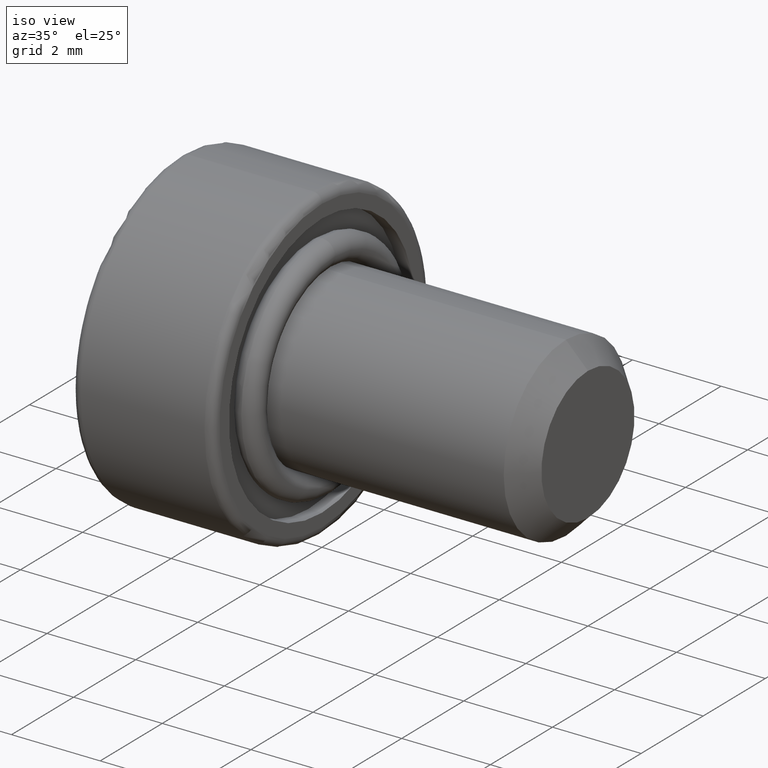
[diagram: clean part render]
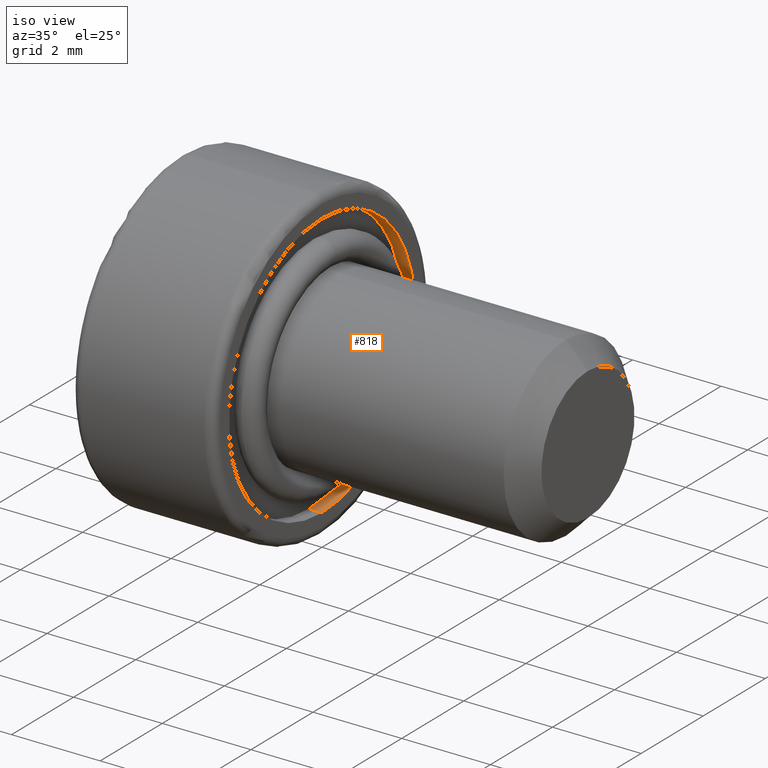
[diagram: same view with one face highlighted and labeled with its STEP entity id]
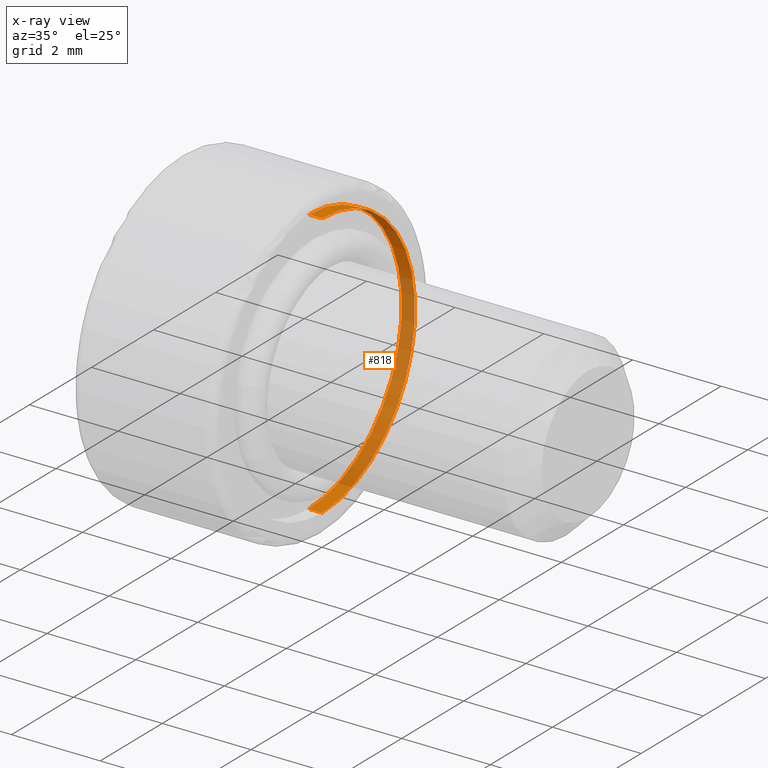
[diagram: x-ray of the same camera — body ghosted, the highlighted face saturated]
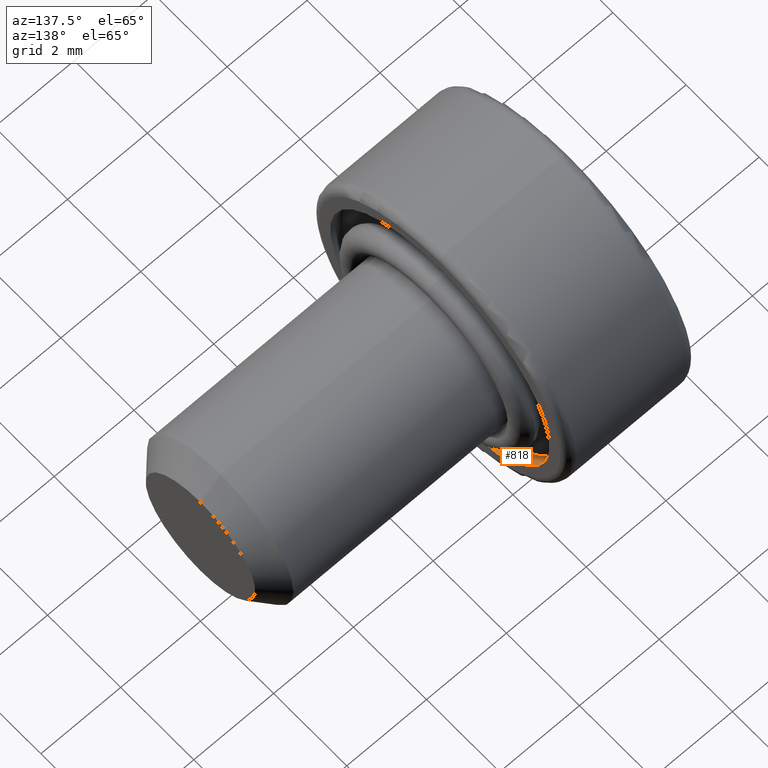
[diagram: same view with one face highlighted and labeled with its STEP entity id]
A machine part, iso view. The second image highlights one B-rep face of the part: STEP entity #818.
The next image is the same camera in x-ray: the body ghosted, the highlighted face saturated — about 67% of this face is hidden behind the body in this view.
A second angle (auxiliary view) of the same face is appended — the face is thin or edge-on in the first view.
In plain terms, the highlighted cylindrical surface (partial cylindrical patch) has radius 3 mm, axis along (1, 0, 0).
Its self-contained STEP definition (entity closure, byte-faithful):
#7 = CIRCLE ( 'NONE', #379, 3.000000000000000400 ) ;
#45 = ORIENTED_EDGE ( 'NONE', *, *, #634, .F. ) ;
#57 = VERTEX_POINT ( 'NONE', #112 ) ;
#85 = DIRECTION ( 'NONE',  ( 1.000000000000000000, 0.0000000000000000000, 0.0000000000000000000 ) ) ;
#112 = CARTESIAN_POINT ( 'NONE',  ( -0.2999999999999999900, 3.673940397442060400E-016, 3.000000000000000400 ) ) ;
#145 = DIRECTION ( 'NONE',  ( 0.0000000000000000000, 0.0000000000000000000, -1.000000000000000000 ) ) ;
#159 = CARTESIAN_POINT ( 'NONE',  ( -0.2999999999999999900, 0.0000000000000000000, -3.000000000000000400 ) ) ;
#162 = VECTOR ( 'NONE', #399, 1000.000000000000000 ) ;
#194 = ORIENTED_EDGE ( 'NONE', *, *, #367, .T. ) ;
#200 = CARTESIAN_POINT ( 'NONE',  ( -0.2999999999999999900, 0.0000000000000000000, 0.0000000000000000000 ) ) ;
#209 = DIRECTION ( 'NONE',  ( 0.0000000000000000000, 0.0000000000000000000, -1.000000000000000000 ) ) ;
#282 = EDGE_LOOP ( 'NONE', ( #326, #45, #194, #415 ) ) ;
#319 = LINE ( 'NONE', #159, #162 ) ;
#326 = ORIENTED_EDGE ( 'NONE', *, *, #382, .F. ) ;
#345 = EDGE_CURVE ( 'NONE', #599, #685, #7, .T. ) ;
#367 = EDGE_CURVE ( 'NONE', #744, #599, #319, .T. ) ;
#379 = AXIS2_PLACEMENT_3D ( 'NONE', #529, #85, #465 ) ;
#382 = EDGE_CURVE ( 'NONE', #57, #685, #659, .T. ) ;
#399 = DIRECTION ( 'NONE',  ( 1.000000000000000000, -0.0000000000000000000, -0.0000000000000000000 ) ) ;
#415 = ORIENTED_EDGE ( 'NONE', *, *, #345, .T. ) ;
#432 = DIRECTION ( 'NONE',  ( 1.000000000000000000, 0.0000000000000000000, 0.0000000000000000000 ) ) ;
#462 = CARTESIAN_POINT ( 'NONE',  ( -0.2999999999999999900, 3.673940397442060400E-016, 3.000000000000000400 ) ) ;
#465 = DIRECTION ( 'NONE',  ( 0.0000000000000000000, 0.0000000000000000000, -1.000000000000000000 ) ) ;
#508 = CARTESIAN_POINT ( 'NONE',  ( 0.0000000000000000000, 3.673940397442060400E-016, 3.000000000000000400 ) ) ;
#523 = DIRECTION ( 'NONE',  ( 1.000000000000000000, -0.0000000000000000000, -0.0000000000000000000 ) ) ;
#529 = CARTESIAN_POINT ( 'NONE',  ( 0.0000000000000000000, 0.0000000000000000000, 0.0000000000000000000 ) ) ;
#578 = DIRECTION ( 'NONE',  ( 1.000000000000000000, -0.0000000000000000000, -0.0000000000000000000 ) ) ;
#582 = CIRCLE ( 'NONE', #755, 3.000000000000000400 ) ;
#599 = VERTEX_POINT ( 'NONE', #730 ) ;
#616 = VECTOR ( 'NONE', #523, 1000.000000000000000 ) ;
#634 = EDGE_CURVE ( 'NONE', #744, #57, #582, .T. ) ;
#659 = LINE ( 'NONE', #462, #616 ) ;
#685 = VERTEX_POINT ( 'NONE', #508 ) ;
#705 = CARTESIAN_POINT ( 'NONE',  ( -0.2999999999999999900, 0.0000000000000000000, -3.000000000000000400 ) ) ;
#730 = CARTESIAN_POINT ( 'NONE',  ( 0.0000000000000000000, 0.0000000000000000000, -3.000000000000000400 ) ) ;
#736 = AXIS2_PLACEMENT_3D ( 'NONE', #200, #578, #145 ) ;
#744 = VERTEX_POINT ( 'NONE', #705 ) ;
#755 = AXIS2_PLACEMENT_3D ( 'NONE', #770, #432, #209 ) ;
#766 = CYLINDRICAL_SURFACE ( 'NONE', #736, 3.000000000000000400 ) ;
#770 = CARTESIAN_POINT ( 'NONE',  ( -0.2999999999999999900, 0.0000000000000000000, 0.0000000000000000000 ) ) ;
#808 = FACE_OUTER_BOUND ( 'NONE', #282, .T. ) ;
#818 = ADVANCED_FACE ( 'NONE', ( #808 ), #766, .F. ) ;